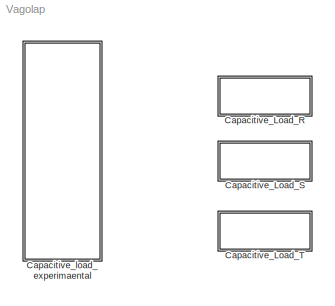
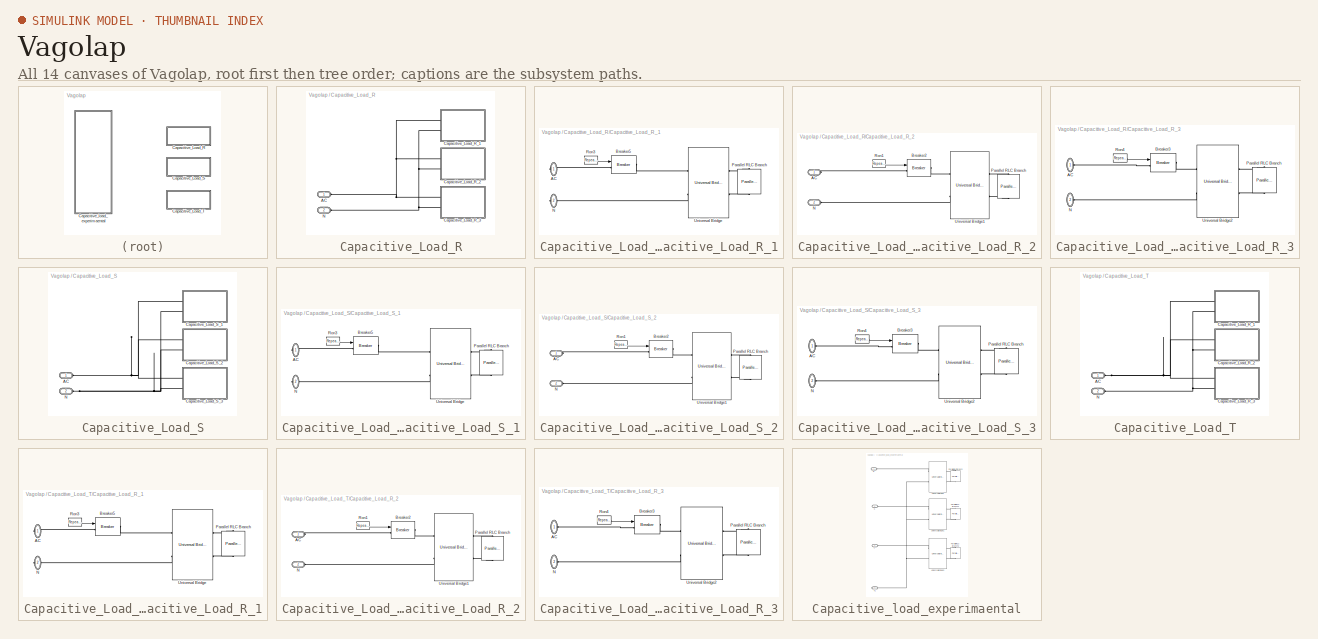
[diagram: thumbnail index - all 14 canvases of the model, root first then tree order]
MODEL Vagolap
KIND model
BLOCK [SubSystem] Capacitive_Load_R
  FunctionWithSeparateData = off
  MaskHideContents = off
  MinAlgLoopOccurrences = off
  Opaque = off
  Ports = [0, 0, 0, 0, 0, 2]
  PropExecContextOutsideSubsystem = off
  RTWSystemCode = Auto
  RequestExecContextInheritance = off
  SID = 44
BLOCK [PMIOPort] Capacitive_Load_R/AC
  Port = 1
  SID = 66
  Side = Left
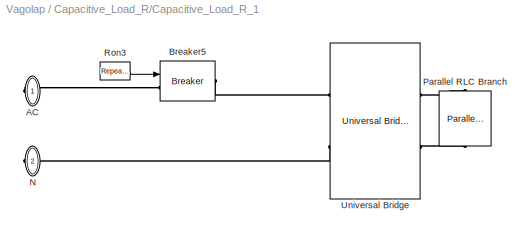
BLOCK [SubSystem] Capacitive_Load_R/Capacitive_Load_R_1
  FunctionWithSeparateData = off
  MaskHideContents = off
  MinAlgLoopOccurrences = off
  Opaque = off
  Ports = [0, 0, 0, 0, 0, 0, 2]
  PropExecContextOutsideSubsystem = off
  RTWSystemCode = Auto
  RequestExecContextInheritance = off
  SID = 45
BLOCK [PMIOPort] Capacitive_Load_R/Capacitive_Load_R_1/AC
  Port = 1
  SID = 51
  Side = Right
BLOCK [Reference] Capacitive_Load_R/Capacitive_Load_R_1/Breaker5  REF=powerlib/Elements/Breaker
  BreakerResistance = 0.01
  External = on
  InitialState = 0
  Measurements = None
  MoreParameters = off
  NoBreakLoop = off
  Ports = [1, 0, 0, 0, 0, 1, 1]
  SID = 46
  SnubberCapacitance = inf
  SnubberResistance = 1e7
  SourceBlock = powerlib/Elements/Breaker
  SourceType = Breaker
  SwitchingTimes = [ 1/60  5/60 ]
BLOCK [PMIOPort] Capacitive_Load_R/Capacitive_Load_R_1/N
  Port = 2
  SID = 113
  Side = Right
BLOCK [Reference] Capacitive_Load_R/Capacitive_Load_R_1/Parallel RLC Branch  REF=powerlib/Elements/Parallel RLC Branch
  AttributesFormatString = \\n
  BranchType = RC
  Capacitance = Capacitive_Load_R_RC(2,1)
  Inductance = 1e-3
  InitialCurrent = 0
  InitialVoltage = 0
  LConnTagsString = a
  Measurements = None
  Ports = [0, 0, 0, 0, 0, 1, 1]
  RConnTagsString = __new0
  Resistance = Capacitive_Load_R_RC(1,1)
  SID = 48
  SetiL0 = off
  Setx0 = off
  SourceBlock = powerlib/Elements/Parallel RLC Branch
  SourceType = Parallel RLC Branch
BLOCK [Reference] Capacitive_Load_R/Capacitive_Load_R_1/Ron3  REF=simulink/Sources/Repeating\nSequence\nStair
  ConRadixGroup = Best Precision: Vector-wise
  LockScale = off
  OutDataType = float('double')
  OutDataTypeStr = float('double')
  OutMax = []
  OutMin = []
  OutScaling = 2^-12
  OutValues = Capacitive_Load_R_Switching_Sequence(:,1)
  OutputDataTypeScalingMode = Specify via dialog
  Ports = [0, 1]
  SID = 49
  SourceBlock = simulink/Sources/Repeating\nSequence\nStair
  SourceType = Repeating Sequence Stair
  tsamp = Capacitive_Load_R_Switching_Speed(1)
BLOCK [Reference] Capacitive_Load_R/Capacitive_Load_R_1/Universal Bridge  REF=powerlib/Power\nElectronics/Universal Bridge
  Arms = 2
  Device = Diodes
  ForwardVoltage = 0.8
  ForwardVoltages = [  0  0  ]
  GTOparameters = [ 10e-6 , 20e-6 ]
  IGBTparameters = [ 1e-6 , 2e-6 ]
  Lon = 0
  Measurements = None
  Measurements_2 = None
  Ports = [0, 0, 0, 0, 0, 2, 2]
  Ron = 1e-3
  SID = 50
  SnubberCapacitance = inf
  SnubberResistance = 1e5
  SourceBlock = powerlib/Power\nElectronics/Universal Bridge
  SourceType = Universal Bridge
  converterType = Rectifier
BLOCK [SubSystem] Capacitive_Load_R/Capacitive_Load_R_2
  FunctionWithSeparateData = off
  MaskHideContents = off
  MinAlgLoopOccurrences = off
  Opaque = off
  Ports = [0, 0, 0, 0, 0, 2]
  PropExecContextOutsideSubsystem = off
  RTWSystemCode = Auto
  RequestExecContextInheritance = off
  SID = 52
BLOCK [PMIOPort] Capacitive_Load_R/Capacitive_Load_R_2/AC
  Port = 1
  SID = 58
  Side = Left
BLOCK [Reference] Capacitive_Load_R/Capacitive_Load_R_2/Breaker2  REF=powerlib/Elements/Breaker
  BreakerResistance = 0.01
  External = on
  InitialState = 0
  Measurements = None
  MoreParameters = off
  NoBreakLoop = off
  Ports = [1, 0, 0, 0, 0, 1, 1]
  SID = 53
  SnubberCapacitance = inf
  SnubberResistance = 1e7
  SourceBlock = powerlib/Elements/Breaker
  SourceType = Breaker
  SwitchingTimes = [ 1/60  5/60 ]
BLOCK [PMIOPort] Capacitive_Load_R/Capacitive_Load_R_2/N
  Port = 2
  SID = 114
  Side = Left
BLOCK [Reference] Capacitive_Load_R/Capacitive_Load_R_2/Parallel RLC Branch  REF=powerlib/Elements/Parallel RLC Branch
  AttributesFormatString = \\n
  BranchType = RC
  Capacitance = Capacitive_Load_R_RC(2,2)
  Inductance = 1e-3
  InitialCurrent = 0
  InitialVoltage = 0
  LConnTagsString = a
  Measurements = None
  Ports = [0, 0, 0, 0, 0, 1, 1]
  RConnTagsString = __new0
  Resistance = Capacitive_Load_R_RC(1,2)
  SID = 55
  SetiL0 = off
  Setx0 = off
  SourceBlock = powerlib/Elements/Parallel RLC Branch
  SourceType = Parallel RLC Branch
BLOCK [Reference] Capacitive_Load_R/Capacitive_Load_R_2/Ron1  REF=simulink/Sources/Repeating\nSequence\nStair
  ConRadixGroup = Best Precision: Vector-wise
  LockScale = off
  OutDataType = float('double')
  OutDataTypeStr = float('double')
  OutMax = []
  OutMin = []
  OutScaling = 2^-12
  OutValues = Capacitive_Load_R_Switching_Sequence(:,2)
  OutputDataTypeScalingMode = Specify via dialog
  Ports = [0, 1]
  SID = 56
  SourceBlock = simulink/Sources/Repeating\nSequence\nStair
  SourceType = Repeating Sequence Stair
  tsamp = Capacitive_Load_R_Switching_Speed(2)
BLOCK [Reference] Capacitive_Load_R/Capacitive_Load_R_2/Universal Bridge1  REF=powerlib/Power\nElectronics/Universal Bridge
  Arms = 2
  Device = Diodes
  ForwardVoltage = 0.8
  ForwardVoltages = [  0  0  ]
  GTOparameters = [ 10e-6 , 20e-6 ]
  IGBTparameters = [ 1e-6 , 2e-6 ]
  Lon = 0
  Measurements = None
  Measurements_2 = None
  Ports = [0, 0, 0, 0, 0, 2, 2]
  Ron = 1e-3
  SID = 57
  SnubberCapacitance = inf
  SnubberResistance = 1e5
  SourceBlock = powerlib/Power\nElectronics/Universal Bridge
  SourceType = Universal Bridge
  converterType = Rectifier
BLOCK [SubSystem] Capacitive_Load_R/Capacitive_Load_R_3
  FunctionWithSeparateData = off
  MaskHideContents = off
  MinAlgLoopOccurrences = off
  Opaque = off
  Ports = [0, 0, 0, 0, 0, 2]
  PropExecContextOutsideSubsystem = off
  RTWSystemCode = Auto
  RequestExecContextInheritance = off
  SID = 59
BLOCK [PMIOPort] Capacitive_Load_R/Capacitive_Load_R_3/AC
  Port = 1
  SID = 65
  Side = Left
BLOCK [Reference] Capacitive_Load_R/Capacitive_Load_R_3/Breaker3  REF=powerlib/Elements/Breaker
  BreakerResistance = 0.01
  External = on
  InitialState = 0
  Measurements = None
  MoreParameters = off
  NoBreakLoop = off
  Ports = [1, 0, 0, 0, 0, 1, 1]
  SID = 60
  SnubberCapacitance = inf
  SnubberResistance = 1e7
  SourceBlock = powerlib/Elements/Breaker
  SourceType = Breaker
  SwitchingTimes = [ 1/60  5/60 ]
BLOCK [PMIOPort] Capacitive_Load_R/Capacitive_Load_R_3/N 
  Port = 2
  SID = 115
  Side = Left
BLOCK [Reference] Capacitive_Load_R/Capacitive_Load_R_3/Parallel RLC Branch  REF=powerlib/Elements/Parallel RLC Branch
  AttributesFormatString = \\n
  BranchType = RC
  Capacitance = Capacitive_Load_R_RC(2,3)
  Inductance = 1e-3
  InitialCurrent = 0
  InitialVoltage = 0
  LConnTagsString = a
  Measurements = None
  Ports = [0, 0, 0, 0, 0, 1, 1]
  RConnTagsString = __new0
  Resistance = Capacitive_Load_R_RC(1,3)
  SID = 62
  SetiL0 = off
  Setx0 = off
  SourceBlock = powerlib/Elements/Parallel RLC Branch
  SourceType = Parallel RLC Branch
BLOCK [Reference] Capacitive_Load_R/Capacitive_Load_R_3/Ron4  REF=simulink/Sources/Repeating\nSequence\nStair
  ConRadixGroup = Best Precision: Vector-wise
  LockScale = off
  OutDataType = float('double')
  OutDataTypeStr = float('double')
  OutMax = []
  OutMin = []
  OutScaling = 2^-12
  OutValues = Capacitive_Load_R_Switching_Sequence(:,3)
  OutputDataTypeScalingMode = Specify via dialog
  Ports = [0, 1]
  SID = 63
  SourceBlock = simulink/Sources/Repeating\nSequence\nStair
  SourceType = Repeating Sequence Stair
  tsamp = Capacitive_Load_R_Switching_Speed(3)
BLOCK [Reference] Capacitive_Load_R/Capacitive_Load_R_3/Universal Bridge2  REF=powerlib/Power\nElectronics/Universal Bridge
  Arms = 2
  Device = Diodes
  ForwardVoltage = 0.8
  ForwardVoltages = [  0  0  ]
  GTOparameters = [ 10e-6 , 20e-6 ]
  IGBTparameters = [ 1e-6 , 2e-6 ]
  Lon = 0
  Measurements = None
  Measurements_2 = None
  Ports = [0, 0, 0, 0, 0, 2, 2]
  Ron = 1e-3
  SID = 64
  SnubberCapacitance = inf
  SnubberResistance = 1e5
  SourceBlock = powerlib/Power\nElectronics/Universal Bridge
  SourceType = Universal Bridge
  converterType = Rectifier
BLOCK [PMIOPort] Capacitive_Load_R/N
  Port = 2
  SID = 116
  Side = Left
BLOCK [SubSystem] Capacitive_Load_S
  FunctionWithSeparateData = off
  MaskHideContents = off
  MinAlgLoopOccurrences = off
  Opaque = off
  Ports = [0, 0, 0, 0, 0, 2]
  PropExecContextOutsideSubsystem = off
  RTWSystemCode = Auto
  RequestExecContextInheritance = off
  SID = 117
BLOCK [PMIOPort] Capacitive_Load_S/AC
  Port = 1
  SID = 139
  Side = Left
BLOCK [SubSystem] Capacitive_Load_S/Capacitive_Load_S_1
  FunctionWithSeparateData = off
  MaskHideContents = off
  MinAlgLoopOccurrences = off
  Opaque = off
  Ports = [0, 0, 0, 0, 0, 0, 2]
  PropExecContextOutsideSubsystem = off
  RTWSystemCode = Auto
  RequestExecContextInheritance = off
  SID = 118
BLOCK [PMIOPort] Capacitive_Load_S/Capacitive_Load_S_1/AC
  Port = 1
  SID = 123
  Side = Right
BLOCK [Reference] Capacitive_Load_S/Capacitive_Load_S_1/Breaker5  REF=powerlib/Elements/Breaker
  BreakerResistance = 0.01
  External = on
  InitialState = 0
  Measurements = None
  MoreParameters = off
  NoBreakLoop = off
  Ports = [1, 0, 0, 0, 0, 1, 1]
  SID = 119
  SnubberCapacitance = inf
  SnubberResistance = 1e7
  SourceBlock = powerlib/Elements/Breaker
  SourceType = Breaker
  SwitchingTimes = [ 1/60  5/60 ]
BLOCK [PMIOPort] Capacitive_Load_S/Capacitive_Load_S_1/N
  Port = 2
  SID = 124
  Side = Right
BLOCK [Reference] Capacitive_Load_S/Capacitive_Load_S_1/Parallel RLC Branch  REF=powerlib/Elements/Parallel RLC Branch
  AttributesFormatString = \\n
  BranchType = RC
  Capacitance = Capacitive_Load_S_RC(2,1)
  Inductance = 1e-3
  InitialCurrent = 0
  InitialVoltage = 0
  LConnTagsString = a
  Measurements = None
  Ports = [0, 0, 0, 0, 0, 1, 1]
  RConnTagsString = __new0
  Resistance = Capacitive_Load_S_RC(1,1)
  SID = 120
  SetiL0 = off
  Setx0 = off
  SourceBlock = powerlib/Elements/Parallel RLC Branch
  SourceType = Parallel RLC Branch
BLOCK [Reference] Capacitive_Load_S/Capacitive_Load_S_1/Ron3  REF=simulink/Sources/Repeating\nSequence\nStair
  ConRadixGroup = Best Precision: Vector-wise
  LockScale = off
  OutDataType = float('double')
  OutDataTypeStr = float('double')
  OutMax = []
  OutMin = []
  OutScaling = 2^-12
  OutValues = Capacitive_Load_S_Switching_Sequence(:,1)
  OutputDataTypeScalingMode = Specify via dialog
  Ports = [0, 1]
  SID = 121
  SourceBlock = simulink/Sources/Repeating\nSequence\nStair
  SourceType = Repeating Sequence Stair
  tsamp = Capacitive_Load_S_Switching_Speed(1)
BLOCK [Reference] Capacitive_Load_S/Capacitive_Load_S_1/Universal Bridge  REF=powerlib/Power\nElectronics/Universal Bridge
  Arms = 2
  Device = Diodes
  ForwardVoltage = 0.8
  ForwardVoltages = [  0  0  ]
  GTOparameters = [ 10e-6 , 20e-6 ]
  IGBTparameters = [ 1e-6 , 2e-6 ]
  Lon = 0
  Measurements = None
  Measurements_2 = None
  Ports = [0, 0, 0, 0, 0, 2, 2]
  Ron = 1e-3
  SID = 122
  SnubberCapacitance = inf
  SnubberResistance = 1e5
  SourceBlock = powerlib/Power\nElectronics/Universal Bridge
  SourceType = Universal Bridge
  converterType = Rectifier
BLOCK [SubSystem] Capacitive_Load_S/Capacitive_Load_S_2
  FunctionWithSeparateData = off
  MaskHideContents = off
  MinAlgLoopOccurrences = off
  Opaque = off
  Ports = [0, 0, 0, 0, 0, 2]
  PropExecContextOutsideSubsystem = off
  RTWSystemCode = Auto
  RequestExecContextInheritance = off
  SID = 125
BLOCK [PMIOPort] Capacitive_Load_S/Capacitive_Load_S_2/AC
  Port = 1
  SID = 130
  Side = Left
BLOCK [Reference] Capacitive_Load_S/Capacitive_Load_S_2/Breaker2  REF=powerlib/Elements/Breaker
  BreakerResistance = 0.01
  External = on
  InitialState = 0
  Measurements = None
  MoreParameters = off
  NoBreakLoop = off
  Ports = [1, 0, 0, 0, 0, 1, 1]
  SID = 126
  SnubberCapacitance = inf
  SnubberResistance = 1e7
  SourceBlock = powerlib/Elements/Breaker
  SourceType = Breaker
  SwitchingTimes = [ 1/60  5/60 ]
BLOCK [PMIOPort] Capacitive_Load_S/Capacitive_Load_S_2/N
  Port = 2
  SID = 131
  Side = Left
BLOCK [Reference] Capacitive_Load_S/Capacitive_Load_S_2/Parallel RLC Branch  REF=powerlib/Elements/Parallel RLC Branch
  AttributesFormatString = \\n
  BranchType = RC
  Capacitance = Capacitive_Load_S_RC(2,2)
  Inductance = 1e-3
  InitialCurrent = 0
  InitialVoltage = 0
  LConnTagsString = a
  Measurements = None
  Ports = [0, 0, 0, 0, 0, 1, 1]
  RConnTagsString = __new0
  Resistance = Capacitive_Load_S_RC(1,2)
  SID = 127
  SetiL0 = off
  Setx0 = off
  SourceBlock = powerlib/Elements/Parallel RLC Branch
  SourceType = Parallel RLC Branch
BLOCK [Reference] Capacitive_Load_S/Capacitive_Load_S_2/Ron1  REF=simulink/Sources/Repeating\nSequence\nStair
  ConRadixGroup = Best Precision: Vector-wise
  LockScale = off
  OutDataType = float('double')
  OutDataTypeStr = float('double')
  OutMax = []
  OutMin = []
  OutScaling = 2^-12
  OutValues = Capacitive_Load_S_Switching_Sequence(:,2)
  OutputDataTypeScalingMode = Specify via dialog
  Ports = [0, 1]
  SID = 128
  SourceBlock = simulink/Sources/Repeating\nSequence\nStair
  SourceType = Repeating Sequence Stair
  tsamp = Capacitive_Load_S_Switching_Speed(2)
BLOCK [Reference] Capacitive_Load_S/Capacitive_Load_S_2/Universal Bridge1  REF=powerlib/Power\nElectronics/Universal Bridge
  Arms = 2
  Device = Diodes
  ForwardVoltage = 0.8
  ForwardVoltages = [  0  0  ]
  GTOparameters = [ 10e-6 , 20e-6 ]
  IGBTparameters = [ 1e-6 , 2e-6 ]
  Lon = 0
  Measurements = None
  Measurements_2 = None
  Ports = [0, 0, 0, 0, 0, 2, 2]
  Ron = 1e-3
  SID = 129
  SnubberCapacitance = inf
  SnubberResistance = 1e5
  SourceBlock = powerlib/Power\nElectronics/Universal Bridge
  SourceType = Universal Bridge
  converterType = Rectifier
BLOCK [SubSystem] Capacitive_Load_S/Capacitive_Load_S_3
  FunctionWithSeparateData = off
  MaskHideContents = off
  MinAlgLoopOccurrences = off
  Opaque = off
  Ports = [0, 0, 0, 0, 0, 2]
  PropExecContextOutsideSubsystem = off
  RTWSystemCode = Auto
  RequestExecContextInheritance = off
  SID = 132
BLOCK [PMIOPort] Capacitive_Load_S/Capacitive_Load_S_3/AC
  Port = 1
  SID = 137
  Side = Left
BLOCK [Reference] Capacitive_Load_S/Capacitive_Load_S_3/Breaker3  REF=powerlib/Elements/Breaker
  BreakerResistance = 0.01
  External = on
  InitialState = 0
  Measurements = None
  MoreParameters = off
  NoBreakLoop = off
  Ports = [1, 0, 0, 0, 0, 1, 1]
  SID = 133
  SnubberCapacitance = inf
  SnubberResistance = 1e7
  SourceBlock = powerlib/Elements/Breaker
  SourceType = Breaker
  SwitchingTimes = [ 1/60  5/60 ]
BLOCK [PMIOPort] Capacitive_Load_S/Capacitive_Load_S_3/N 
  Port = 2
  SID = 138
  Side = Left
BLOCK [Reference] Capacitive_Load_S/Capacitive_Load_S_3/Parallel RLC Branch  REF=powerlib/Elements/Parallel RLC Branch
  AttributesFormatString = \\n
  BranchType = RC
  Capacitance = Capacitive_Load_S_RC(2,3)
  Inductance = 1e-3
  InitialCurrent = 0
  InitialVoltage = 0
  LConnTagsString = a
  Measurements = None
  Ports = [0, 0, 0, 0, 0, 1, 1]
  RConnTagsString = __new0
  Resistance = Capacitive_Load_S_RC(1,3)
  SID = 134
  SetiL0 = off
  Setx0 = off
  SourceBlock = powerlib/Elements/Parallel RLC Branch
  SourceType = Parallel RLC Branch
BLOCK [Reference] Capacitive_Load_S/Capacitive_Load_S_3/Ron4  REF=simulink/Sources/Repeating\nSequence\nStair
  ConRadixGroup = Best Precision: Vector-wise
  LockScale = off
  OutDataType = float('double')
  OutDataTypeStr = float('double')
  OutMax = []
  OutMin = []
  OutScaling = 2^-12
  OutValues = Capacitive_Load_S_Switching_Sequence(:,3)
  OutputDataTypeScalingMode = Specify via dialog
  Ports = [0, 1]
  SID = 135
  SourceBlock = simulink/Sources/Repeating\nSequence\nStair
  SourceType = Repeating Sequence Stair
  tsamp = Capacitive_Load_S_Switching_Speed(3)
BLOCK [Reference] Capacitive_Load_S/Capacitive_Load_S_3/Universal Bridge2  REF=powerlib/Power\nElectronics/Universal Bridge
  Arms = 2
  Device = Diodes
  ForwardVoltage = 0.8
  ForwardVoltages = [  0  0  ]
  GTOparameters = [ 10e-6 , 20e-6 ]
  IGBTparameters = [ 1e-6 , 2e-6 ]
  Lon = 0
  Measurements = None
  Measurements_2 = None
  Ports = [0, 0, 0, 0, 0, 2, 2]
  Ron = 1e-3
  SID = 136
  SnubberCapacitance = inf
  SnubberResistance = 1e5
  SourceBlock = powerlib/Power\nElectronics/Universal Bridge
  SourceType = Universal Bridge
  converterType = Rectifier
BLOCK [PMIOPort] Capacitive_Load_S/N
  Port = 2
  SID = 140
  Side = Left
BLOCK [SubSystem] Capacitive_Load_T
  FunctionWithSeparateData = off
  MaskHideContents = off
  MinAlgLoopOccurrences = off
  Opaque = off
  Ports = [0, 0, 0, 0, 0, 2]
  PropExecContextOutsideSubsystem = off
  RTWSystemCode = Auto
  RequestExecContextInheritance = off
  SID = 141
BLOCK [PMIOPort] Capacitive_Load_T/AC
  Port = 1
  SID = 163
  Side = Left
BLOCK [SubSystem] Capacitive_Load_T/Capacitive_Load_R_1
  FunctionWithSeparateData = off
  MaskHideContents = off
  MinAlgLoopOccurrences = off
  Opaque = off
  Ports = [0, 0, 0, 0, 0, 0, 2]
  PropExecContextOutsideSubsystem = off
  RTWSystemCode = Auto
  RequestExecContextInheritance = off
  SID = 142
BLOCK [PMIOPort] Capacitive_Load_T/Capacitive_Load_R_1/AC
  Port = 1
  SID = 147
  Side = Right
BLOCK [Reference] Capacitive_Load_T/Capacitive_Load_R_1/Breaker5  REF=powerlib/Elements/Breaker
  BreakerResistance = 0.01
  External = on
  InitialState = 0
  Measurements = None
  MoreParameters = off
  NoBreakLoop = off
  Ports = [1, 0, 0, 0, 0, 1, 1]
  SID = 143
  SnubberCapacitance = inf
  SnubberResistance = 1e7
  SourceBlock = powerlib/Elements/Breaker
  SourceType = Breaker
  SwitchingTimes = [ 1/60  5/60 ]
BLOCK [PMIOPort] Capacitive_Load_T/Capacitive_Load_R_1/N
  Port = 2
  SID = 148
  Side = Right
BLOCK [Reference] Capacitive_Load_T/Capacitive_Load_R_1/Parallel RLC Branch  REF=powerlib/Elements/Parallel RLC Branch
  AttributesFormatString = \\n
  BranchType = RC
  Capacitance = Capacitive_Load_T_RC(2,1)
  Inductance = 1e-3
  InitialCurrent = 0
  InitialVoltage = 0
  LConnTagsString = a
  Measurements = None
  Ports = [0, 0, 0, 0, 0, 1, 1]
  RConnTagsString = __new0
  Resistance = Capacitive_Load_T_RC(1,1)
  SID = 144
  SetiL0 = off
  Setx0 = off
  SourceBlock = powerlib/Elements/Parallel RLC Branch
  SourceType = Parallel RLC Branch
BLOCK [Reference] Capacitive_Load_T/Capacitive_Load_R_1/Ron3  REF=simulink/Sources/Repeating\nSequence\nStair
  ConRadixGroup = Best Precision: Vector-wise
  LockScale = off
  OutDataType = float('double')
  OutDataTypeStr = float('double')
  OutMax = []
  OutMin = []
  OutScaling = 2^-12
  OutValues = Capacitive_Load_T_Switching_Sequence(:,1)
  OutputDataTypeScalingMode = Specify via dialog
  Ports = [0, 1]
  SID = 145
  SourceBlock = simulink/Sources/Repeating\nSequence\nStair
  SourceType = Repeating Sequence Stair
  tsamp = Capacitive_Load_T_Switching_Speed(1)
BLOCK [Reference] Capacitive_Load_T/Capacitive_Load_R_1/Universal Bridge  REF=powerlib/Power\nElectronics/Universal Bridge
  Arms = 2
  Device = Diodes
  ForwardVoltage = 0.8
  ForwardVoltages = [  0  0  ]
  GTOparameters = [ 10e-6 , 20e-6 ]
  IGBTparameters = [ 1e-6 , 2e-6 ]
  Lon = 0
  Measurements = None
  Measurements_2 = None
  Ports = [0, 0, 0, 0, 0, 2, 2]
  Ron = 1e-3
  SID = 146
  SnubberCapacitance = inf
  SnubberResistance = 1e5
  SourceBlock = powerlib/Power\nElectronics/Universal Bridge
  SourceType = Universal Bridge
  converterType = Rectifier
BLOCK [SubSystem] Capacitive_Load_T/Capacitive_Load_R_2
  FunctionWithSeparateData = off
  MaskHideContents = off
  MinAlgLoopOccurrences = off
  Opaque = off
  Ports = [0, 0, 0, 0, 0, 2]
  PropExecContextOutsideSubsystem = off
  RTWSystemCode = Auto
  RequestExecContextInheritance = off
  SID = 149
BLOCK [PMIOPort] Capacitive_Load_T/Capacitive_Load_R_2/AC
  Port = 1
  SID = 154
  Side = Left
BLOCK [Reference] Capacitive_Load_T/Capacitive_Load_R_2/Breaker2  REF=powerlib/Elements/Breaker
  BreakerResistance = 0.01
  External = on
  InitialState = 0
  Measurements = None
  MoreParameters = off
  NoBreakLoop = off
  Ports = [1, 0, 0, 0, 0, 1, 1]
  SID = 150
  SnubberCapacitance = inf
  SnubberResistance = 1e7
  SourceBlock = powerlib/Elements/Breaker
  SourceType = Breaker
  SwitchingTimes = [ 1/60  5/60 ]
BLOCK [PMIOPort] Capacitive_Load_T/Capacitive_Load_R_2/N
  Port = 2
  SID = 155
  Side = Left
BLOCK [Reference] Capacitive_Load_T/Capacitive_Load_R_2/Parallel RLC Branch  REF=powerlib/Elements/Parallel RLC Branch
  AttributesFormatString = \\n
  BranchType = RC
  Capacitance = Capacitive_Load_T_RC(2,2)
  Inductance = 1e-3
  InitialCurrent = 0
  InitialVoltage = 0
  LConnTagsString = a
  Measurements = None
  Ports = [0, 0, 0, 0, 0, 1, 1]
  RConnTagsString = __new0
  Resistance = Capacitive_Load_T_RC(1,2)
  SID = 151
  SetiL0 = off
  Setx0 = off
  SourceBlock = powerlib/Elements/Parallel RLC Branch
  SourceType = Parallel RLC Branch
BLOCK [Reference] Capacitive_Load_T/Capacitive_Load_R_2/Ron1  REF=simulink/Sources/Repeating\nSequence\nStair
  ConRadixGroup = Best Precision: Vector-wise
  LockScale = off
  OutDataType = float('double')
  OutDataTypeStr = float('double')
  OutMax = []
  OutMin = []
  OutScaling = 2^-12
  OutValues = Capacitive_Load_T_Switching_Sequence(:,2)
  OutputDataTypeScalingMode = Specify via dialog
  Ports = [0, 1]
  SID = 152
  SourceBlock = simulink/Sources/Repeating\nSequence\nStair
  SourceType = Repeating Sequence Stair
  tsamp = Capacitive_Load_T_Switching_Speed(2)
BLOCK [Reference] Capacitive_Load_T/Capacitive_Load_R_2/Universal Bridge1  REF=powerlib/Power\nElectronics/Universal Bridge
  Arms = 2
  Device = Diodes
  ForwardVoltage = 0.8
  ForwardVoltages = [  0  0  ]
  GTOparameters = [ 10e-6 , 20e-6 ]
  IGBTparameters = [ 1e-6 , 2e-6 ]
  Lon = 0
  Measurements = None
  Measurements_2 = None
  Ports = [0, 0, 0, 0, 0, 2, 2]
  Ron = 1e-3
  SID = 153
  SnubberCapacitance = inf
  SnubberResistance = 1e5
  SourceBlock = powerlib/Power\nElectronics/Universal Bridge
  SourceType = Universal Bridge
  converterType = Rectifier
BLOCK [SubSystem] Capacitive_Load_T/Capacitive_Load_R_3
  FunctionWithSeparateData = off
  MaskHideContents = off
  MinAlgLoopOccurrences = off
  Opaque = off
  Ports = [0, 0, 0, 0, 0, 2]
  PropExecContextOutsideSubsystem = off
  RTWSystemCode = Auto
  RequestExecContextInheritance = off
  SID = 156
BLOCK [PMIOPort] Capacitive_Load_T/Capacitive_Load_R_3/AC
  Port = 1
  SID = 161
  Side = Left
BLOCK [Reference] Capacitive_Load_T/Capacitive_Load_R_3/Breaker3  REF=powerlib/Elements/Breaker
  BreakerResistance = 0.01
  External = on
  InitialState = 0
  Measurements = None
  MoreParameters = off
  NoBreakLoop = off
  Ports = [1, 0, 0, 0, 0, 1, 1]
  SID = 157
  SnubberCapacitance = inf
  SnubberResistance = 1e7
  SourceBlock = powerlib/Elements/Breaker
  SourceType = Breaker
  SwitchingTimes = [ 1/60  5/60 ]
BLOCK [PMIOPort] Capacitive_Load_T/Capacitive_Load_R_3/N 
  Port = 2
  SID = 162
  Side = Left
BLOCK [Reference] Capacitive_Load_T/Capacitive_Load_R_3/Parallel RLC Branch  REF=powerlib/Elements/Parallel RLC Branch
  AttributesFormatString = \\n
  BranchType = RC
  Capacitance = Capacitive_Load_T_RC(2,3)
  Inductance = 1e-3
  InitialCurrent = 0
  InitialVoltage = 0
  LConnTagsString = a
  Measurements = None
  Ports = [0, 0, 0, 0, 0, 1, 1]
  RConnTagsString = __new0
  Resistance = Capacitive_Load_T_RC(1,3)
  SID = 158
  SetiL0 = off
  Setx0 = off
  SourceBlock = powerlib/Elements/Parallel RLC Branch
  SourceType = Parallel RLC Branch
BLOCK [Reference] Capacitive_Load_T/Capacitive_Load_R_3/Ron4  REF=simulink/Sources/Repeating\nSequence\nStair
  ConRadixGroup = Best Precision: Vector-wise
  LockScale = off
  OutDataType = float('double')
  OutDataTypeStr = float('double')
  OutMax = []
  OutMin = []
  OutScaling = 2^-12
  OutValues = Capacitive_Load_T_Switching_Sequence(:,3)
  OutputDataTypeScalingMode = Specify via dialog
  Ports = [0, 1]
  SID = 159
  SourceBlock = simulink/Sources/Repeating\nSequence\nStair
  SourceType = Repeating Sequence Stair
  tsamp = Capacitive_Load_T_Switching_Speed(3)
BLOCK [Reference] Capacitive_Load_T/Capacitive_Load_R_3/Universal Bridge2  REF=powerlib/Power\nElectronics/Universal Bridge
  Arms = 2
  Device = Diodes
  ForwardVoltage = 0.8
  ForwardVoltages = [  0  0  ]
  GTOparameters = [ 10e-6 , 20e-6 ]
  IGBTparameters = [ 1e-6 , 2e-6 ]
  Lon = 0
  Measurements = None
  Measurements_2 = None
  Ports = [0, 0, 0, 0, 0, 2, 2]
  Ron = 1e-3
  SID = 160
  SnubberCapacitance = inf
  SnubberResistance = 1e5
  SourceBlock = powerlib/Power\nElectronics/Universal Bridge
  SourceType = Universal Bridge
  converterType = Rectifier
BLOCK [PMIOPort] Capacitive_Load_T/N
  Port = 2
  SID = 164
  Side = Left
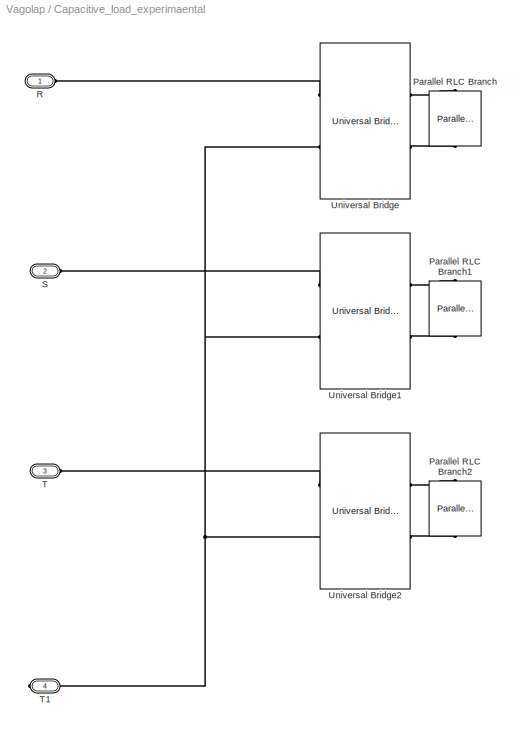
BLOCK [SubSystem] Capacitive_load_experimaental
  FunctionWithSeparateData = off
  MaskHideContents = off
  MinAlgLoopOccurrences = off
  Opaque = off
  Ports = [0, 0, 0, 0, 0, 3, 1]
  PropExecContextOutsideSubsystem = off
  RTWSystemCode = Auto
  RequestExecContextInheritance = off
  SID = 165
BLOCK [Reference] Capacitive_load_experimaental/Parallel RLC Branch  REF=powerlib/Elements/Parallel RLC Branch
  AttributesFormatString = \\n
  BranchType = RC
  Capacitance = Capacitive_Load_R_RC(2,1)
  Inductance = 1e-3
  InitialCurrent = 0
  InitialVoltage = 0
  LConnTagsString = a
  Measurements = None
  Ports = [0, 0, 0, 0, 0, 1, 1]
  RConnTagsString = __new0
  Resistance = Capacitive_Load_R_RC(1,1)
  SID = 166
  SetiL0 = off
  Setx0 = off
  SourceBlock = powerlib/Elements/Parallel RLC Branch
  SourceType = Parallel RLC Branch
BLOCK [Reference] Capacitive_load_experimaental/Parallel RLC Branch1  REF=powerlib/Elements/Parallel RLC Branch
  AttributesFormatString = \\n
  BranchType = RC
  Capacitance = Capacitive_Load_R_RC(2,1)
  Inductance = 1e-3
  InitialCurrent = 0
  InitialVoltage = 0
  LConnTagsString = a
  Measurements = None
  Ports = [0, 0, 0, 0, 0, 1, 1]
  RConnTagsString = __new0
  Resistance = Capacitive_Load_R_RC(1,1)
  SID = 167
  SetiL0 = off
  Setx0 = off
  SourceBlock = powerlib/Elements/Parallel RLC Branch
  SourceType = Parallel RLC Branch
BLOCK [Reference] Capacitive_load_experimaental/Parallel RLC Branch2  REF=powerlib/Elements/Parallel RLC Branch
  AttributesFormatString = \\n
  BranchType = RC
  Capacitance = Capacitive_Load_R_RC(2,1)
  Inductance = 1e-3
  InitialCurrent = 0
  InitialVoltage = 0
  LConnTagsString = a
  Measurements = None
  Ports = [0, 0, 0, 0, 0, 1, 1]
  RConnTagsString = __new0
  Resistance = Capacitive_Load_R_RC(1,1)
  SID = 168
  SetiL0 = off
  Setx0 = off
  SourceBlock = powerlib/Elements/Parallel RLC Branch
  SourceType = Parallel RLC Branch
BLOCK [PMIOPort] Capacitive_load_experimaental/R
  Port = 1
  SID = 172
  Side = Left
BLOCK [PMIOPort] Capacitive_load_experimaental/S
  Port = 2
  SID = 173
  Side = Left
BLOCK [PMIOPort] Capacitive_load_experimaental/T
  Port = 3
  SID = 174
  Side = Left
BLOCK [PMIOPort] Capacitive_load_experimaental/T1
  Port = 4
  SID = 175
  Side = Right
BLOCK [Reference] Capacitive_load_experimaental/Universal Bridge  REF=powerlib/Power\nElectronics/Universal Bridge
  Arms = 2
  Device = Diodes
  ForwardVoltage = 0.8
  ForwardVoltages = [  0  0  ]
  GTOparameters = [ 10e-6 , 20e-6 ]
  IGBTparameters = [ 1e-6 , 2e-6 ]
  Lon = 0
  Measurements = None
  Measurements_2 = None
  Ports = [0, 0, 0, 0, 0, 2, 2]
  Ron = 1e-3
  SID = 169
  SnubberCapacitance = inf
  SnubberResistance = 1e5
  SourceBlock = powerlib/Power\nElectronics/Universal Bridge
  SourceType = Universal Bridge
  converterType = Rectifier
BLOCK [Reference] Capacitive_load_experimaental/Universal Bridge1  REF=powerlib/Power\nElectronics/Universal Bridge
  Arms = 2
  Device = Diodes
  ForwardVoltage = 0.8
  ForwardVoltages = [  0  0  ]
  GTOparameters = [ 10e-6 , 20e-6 ]
  IGBTparameters = [ 1e-6 , 2e-6 ]
  Lon = 0
  Measurements = None
  Measurements_2 = None
  Ports = [0, 0, 0, 0, 0, 2, 2]
  Ron = 1e-3
  SID = 170
  SnubberCapacitance = inf
  SnubberResistance = 1e5
  SourceBlock = powerlib/Power\nElectronics/Universal Bridge
  SourceType = Universal Bridge
  converterType = Rectifier
BLOCK [Reference] Capacitive_load_experimaental/Universal Bridge2  REF=powerlib/Power\nElectronics/Universal Bridge
  Arms = 2
  Device = Diodes
  ForwardVoltage = 0.8
  ForwardVoltages = [  0  0  ]
  GTOparameters = [ 10e-6 , 20e-6 ]
  IGBTparameters = [ 1e-6 , 2e-6 ]
  Lon = 0
  Measurements = None
  Measurements_2 = None
  Ports = [0, 0, 0, 0, 0, 2, 2]
  Ron = 1e-3
  SID = 171
  SnubberCapacitance = inf
  SnubberResistance = 1e5
  SourceBlock = powerlib/Power\nElectronics/Universal Bridge
  SourceType = Universal Bridge
  converterType = Rectifier
LINE Capacitive_Load_R/Capacitive_Load_R_1/Ron3:1 -> Capacitive_Load_R/Capacitive_Load_R_1/Breaker5:1
LINE Capacitive_Load_R/Capacitive_Load_R_2/Ron1:1 -> Capacitive_Load_R/Capacitive_Load_R_2/Breaker2:1
LINE Capacitive_Load_R/Capacitive_Load_R_3/Ron4:1 -> Capacitive_Load_R/Capacitive_Load_R_3/Breaker3:1
LINE Capacitive_Load_S/Capacitive_Load_S_1/Ron3:1 -> Capacitive_Load_S/Capacitive_Load_S_1/Breaker5:1
LINE Capacitive_Load_S/Capacitive_Load_S_2/Ron1:1 -> Capacitive_Load_S/Capacitive_Load_S_2/Breaker2:1
LINE Capacitive_Load_S/Capacitive_Load_S_3/Ron4:1 -> Capacitive_Load_S/Capacitive_Load_S_3/Breaker3:1
LINE Capacitive_Load_T/Capacitive_Load_R_1/Ron3:1 -> Capacitive_Load_T/Capacitive_Load_R_1/Breaker5:1
LINE Capacitive_Load_T/Capacitive_Load_R_2/Ron1:1 -> Capacitive_Load_T/Capacitive_Load_R_2/Breaker2:1
LINE Capacitive_Load_T/Capacitive_Load_R_3/Ron4:1 -> Capacitive_Load_T/Capacitive_Load_R_3/Breaker3:1
PNET net1: Capacitive_Load_R/AC:RConn1 -- Capacitive_Load_R/Capacitive_Load_R_1:RConn1 -- Capacitive_Load_R/Capacitive_Load_R_2:LConn1 -- Capacitive_Load_R/Capacitive_Load_R_3:LConn1
PLINE Capacitive_Load_R/Capacitive_Load_R_1/AC:RConn1 -- Capacitive_Load_R/Capacitive_Load_R_1/Breaker5:LConn1
PLINE Capacitive_Load_R/Capacitive_Load_R_1/Breaker5:RConn1 -- Capacitive_Load_R/Capacitive_Load_R_1/Universal Bridge:LConn1
PLINE Capacitive_Load_R/Capacitive_Load_R_1/N:RConn1 -- Capacitive_Load_R/Capacitive_Load_R_1/Universal Bridge:LConn2
PLINE Capacitive_Load_R/Capacitive_Load_R_1/Parallel RLC Branch:LConn1 -- Capacitive_Load_R/Capacitive_Load_R_1/Universal Bridge:RConn1
PLINE Capacitive_Load_R/Capacitive_Load_R_1/Parallel RLC Branch:RConn1 -- Capacitive_Load_R/Capacitive_Load_R_1/Universal Bridge:RConn2
PNET net2: Capacitive_Load_R/Capacitive_Load_R_1:RConn2 -- Capacitive_Load_R/Capacitive_Load_R_2:LConn2 -- Capacitive_Load_R/Capacitive_Load_R_3:LConn2 -- Capacitive_Load_R/N:RConn1
PLINE Capacitive_Load_R/Capacitive_Load_R_2/AC:RConn1 -- Capacitive_Load_R/Capacitive_Load_R_2/Breaker2:LConn1
PLINE Capacitive_Load_R/Capacitive_Load_R_2/Breaker2:RConn1 -- Capacitive_Load_R/Capacitive_Load_R_2/Universal Bridge1:LConn1
PLINE Capacitive_Load_R/Capacitive_Load_R_2/N:RConn1 -- Capacitive_Load_R/Capacitive_Load_R_2/Universal Bridge1:LConn2
PLINE Capacitive_Load_R/Capacitive_Load_R_2/Parallel RLC Branch:LConn1 -- Capacitive_Load_R/Capacitive_Load_R_2/Universal Bridge1:RConn1
PLINE Capacitive_Load_R/Capacitive_Load_R_2/Parallel RLC Branch:RConn1 -- Capacitive_Load_R/Capacitive_Load_R_2/Universal Bridge1:RConn2
PLINE Capacitive_Load_R/Capacitive_Load_R_3/AC:RConn1 -- Capacitive_Load_R/Capacitive_Load_R_3/Breaker3:LConn1
PLINE Capacitive_Load_R/Capacitive_Load_R_3/Breaker3:RConn1 -- Capacitive_Load_R/Capacitive_Load_R_3/Universal Bridge2:LConn1
PLINE Capacitive_Load_R/Capacitive_Load_R_3/N :RConn1 -- Capacitive_Load_R/Capacitive_Load_R_3/Universal Bridge2:LConn2
PLINE Capacitive_Load_R/Capacitive_Load_R_3/Parallel RLC Branch:LConn1 -- Capacitive_Load_R/Capacitive_Load_R_3/Universal Bridge2:RConn1
PLINE Capacitive_Load_R/Capacitive_Load_R_3/Parallel RLC Branch:RConn1 -- Capacitive_Load_R/Capacitive_Load_R_3/Universal Bridge2:RConn2
PNET net3: Capacitive_Load_S/AC:RConn1 -- Capacitive_Load_S/Capacitive_Load_S_1:RConn1 -- Capacitive_Load_S/Capacitive_Load_S_2:LConn1 -- Capacitive_Load_S/Capacitive_Load_S_3:LConn1
PLINE Capacitive_Load_S/Capacitive_Load_S_1/AC:RConn1 -- Capacitive_Load_S/Capacitive_Load_S_1/Breaker5:LConn1
PLINE Capacitive_Load_S/Capacitive_Load_S_1/Breaker5:RConn1 -- Capacitive_Load_S/Capacitive_Load_S_1/Universal Bridge:LConn1
PLINE Capacitive_Load_S/Capacitive_Load_S_1/N:RConn1 -- Capacitive_Load_S/Capacitive_Load_S_1/Universal Bridge:LConn2
PLINE Capacitive_Load_S/Capacitive_Load_S_1/Parallel RLC Branch:LConn1 -- Capacitive_Load_S/Capacitive_Load_S_1/Universal Bridge:RConn1
PLINE Capacitive_Load_S/Capacitive_Load_S_1/Parallel RLC Branch:RConn1 -- Capacitive_Load_S/Capacitive_Load_S_1/Universal Bridge:RConn2
PNET net4: Capacitive_Load_S/Capacitive_Load_S_1:RConn2 -- Capacitive_Load_S/Capacitive_Load_S_2:LConn2 -- Capacitive_Load_S/Capacitive_Load_S_3:LConn2 -- Capacitive_Load_S/N:RConn1
PLINE Capacitive_Load_S/Capacitive_Load_S_2/AC:RConn1 -- Capacitive_Load_S/Capacitive_Load_S_2/Breaker2:LConn1
PLINE Capacitive_Load_S/Capacitive_Load_S_2/Breaker2:RConn1 -- Capacitive_Load_S/Capacitive_Load_S_2/Universal Bridge1:LConn1
PLINE Capacitive_Load_S/Capacitive_Load_S_2/N:RConn1 -- Capacitive_Load_S/Capacitive_Load_S_2/Universal Bridge1:LConn2
PLINE Capacitive_Load_S/Capacitive_Load_S_2/Parallel RLC Branch:LConn1 -- Capacitive_Load_S/Capacitive_Load_S_2/Universal Bridge1:RConn1
PLINE Capacitive_Load_S/Capacitive_Load_S_2/Parallel RLC Branch:RConn1 -- Capacitive_Load_S/Capacitive_Load_S_2/Universal Bridge1:RConn2
PLINE Capacitive_Load_S/Capacitive_Load_S_3/AC:RConn1 -- Capacitive_Load_S/Capacitive_Load_S_3/Breaker3:LConn1
PLINE Capacitive_Load_S/Capacitive_Load_S_3/Breaker3:RConn1 -- Capacitive_Load_S/Capacitive_Load_S_3/Universal Bridge2:LConn1
PLINE Capacitive_Load_S/Capacitive_Load_S_3/N :RConn1 -- Capacitive_Load_S/Capacitive_Load_S_3/Universal Bridge2:LConn2
PLINE Capacitive_Load_S/Capacitive_Load_S_3/Parallel RLC Branch:LConn1 -- Capacitive_Load_S/Capacitive_Load_S_3/Universal Bridge2:RConn1
PLINE Capacitive_Load_S/Capacitive_Load_S_3/Parallel RLC Branch:RConn1 -- Capacitive_Load_S/Capacitive_Load_S_3/Universal Bridge2:RConn2
PNET net5: Capacitive_Load_T/AC:RConn1 -- Capacitive_Load_T/Capacitive_Load_R_1:RConn1 -- Capacitive_Load_T/Capacitive_Load_R_2:LConn1 -- Capacitive_Load_T/Capacitive_Load_R_3:LConn1
PLINE Capacitive_Load_T/Capacitive_Load_R_1/AC:RConn1 -- Capacitive_Load_T/Capacitive_Load_R_1/Breaker5:LConn1
PLINE Capacitive_Load_T/Capacitive_Load_R_1/Breaker5:RConn1 -- Capacitive_Load_T/Capacitive_Load_R_1/Universal Bridge:LConn1
PLINE Capacitive_Load_T/Capacitive_Load_R_1/N:RConn1 -- Capacitive_Load_T/Capacitive_Load_R_1/Universal Bridge:LConn2
PLINE Capacitive_Load_T/Capacitive_Load_R_1/Parallel RLC Branch:LConn1 -- Capacitive_Load_T/Capacitive_Load_R_1/Universal Bridge:RConn1
PLINE Capacitive_Load_T/Capacitive_Load_R_1/Parallel RLC Branch:RConn1 -- Capacitive_Load_T/Capacitive_Load_R_1/Universal Bridge:RConn2
PNET net6: Capacitive_Load_T/Capacitive_Load_R_1:RConn2 -- Capacitive_Load_T/Capacitive_Load_R_2:LConn2 -- Capacitive_Load_T/Capacitive_Load_R_3:LConn2 -- Capacitive_Load_T/N:RConn1
PLINE Capacitive_Load_T/Capacitive_Load_R_2/AC:RConn1 -- Capacitive_Load_T/Capacitive_Load_R_2/Breaker2:LConn1
PLINE Capacitive_Load_T/Capacitive_Load_R_2/Breaker2:RConn1 -- Capacitive_Load_T/Capacitive_Load_R_2/Universal Bridge1:LConn1
PLINE Capacitive_Load_T/Capacitive_Load_R_2/N:RConn1 -- Capacitive_Load_T/Capacitive_Load_R_2/Universal Bridge1:LConn2
PLINE Capacitive_Load_T/Capacitive_Load_R_2/Parallel RLC Branch:LConn1 -- Capacitive_Load_T/Capacitive_Load_R_2/Universal Bridge1:RConn1
PLINE Capacitive_Load_T/Capacitive_Load_R_2/Parallel RLC Branch:RConn1 -- Capacitive_Load_T/Capacitive_Load_R_2/Universal Bridge1:RConn2
PLINE Capacitive_Load_T/Capacitive_Load_R_3/AC:RConn1 -- Capacitive_Load_T/Capacitive_Load_R_3/Breaker3:LConn1
PLINE Capacitive_Load_T/Capacitive_Load_R_3/Breaker3:RConn1 -- Capacitive_Load_T/Capacitive_Load_R_3/Universal Bridge2:LConn1
PLINE Capacitive_Load_T/Capacitive_Load_R_3/N :RConn1 -- Capacitive_Load_T/Capacitive_Load_R_3/Universal Bridge2:LConn2
PLINE Capacitive_Load_T/Capacitive_Load_R_3/Parallel RLC Branch:LConn1 -- Capacitive_Load_T/Capacitive_Load_R_3/Universal Bridge2:RConn1
PLINE Capacitive_Load_T/Capacitive_Load_R_3/Parallel RLC Branch:RConn1 -- Capacitive_Load_T/Capacitive_Load_R_3/Universal Bridge2:RConn2
PLINE Capacitive_load_experimaental/Parallel RLC Branch1:LConn1 -- Capacitive_load_experimaental/Universal Bridge1:RConn1
PLINE Capacitive_load_experimaental/Parallel RLC Branch1:RConn1 -- Capacitive_load_experimaental/Universal Bridge1:RConn2
PLINE Capacitive_load_experimaental/Parallel RLC Branch2:LConn1 -- Capacitive_load_experimaental/Universal Bridge2:RConn1
PLINE Capacitive_load_experimaental/Parallel RLC Branch2:RConn1 -- Capacitive_load_experimaental/Universal Bridge2:RConn2
PLINE Capacitive_load_experimaental/Parallel RLC Branch:LConn1 -- Capacitive_load_experimaental/Universal Bridge:RConn1
PLINE Capacitive_load_experimaental/Parallel RLC Branch:RConn1 -- Capacitive_load_experimaental/Universal Bridge:RConn2
PLINE Capacitive_load_experimaental/R:RConn1 -- Capacitive_load_experimaental/Universal Bridge:LConn1
PLINE Capacitive_load_experimaental/S:RConn1 -- Capacitive_load_experimaental/Universal Bridge1:LConn1
PNET net7: Capacitive_load_experimaental/T1:RConn1 -- Capacitive_load_experimaental/Universal Bridge1:LConn2 -- Capacitive_load_experimaental/Universal Bridge2:LConn2 -- Capacitive_load_experimaental/Universal Bridge:LConn2
PLINE Capacitive_load_experimaental/T:RConn1 -- Capacitive_load_experimaental/Universal Bridge2:LConn1
note: PNET lines group multi-terminal physical nets as a canonical sorted terminal list (undirected conserving connections); 2-terminal nets keep the pairwise PLINE form
